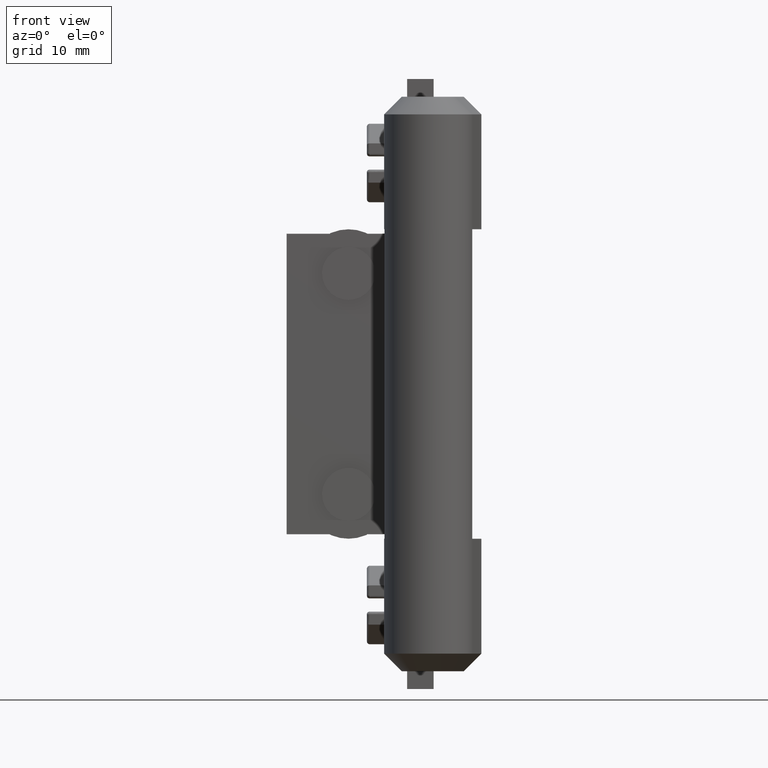
[diagram: clean part render]
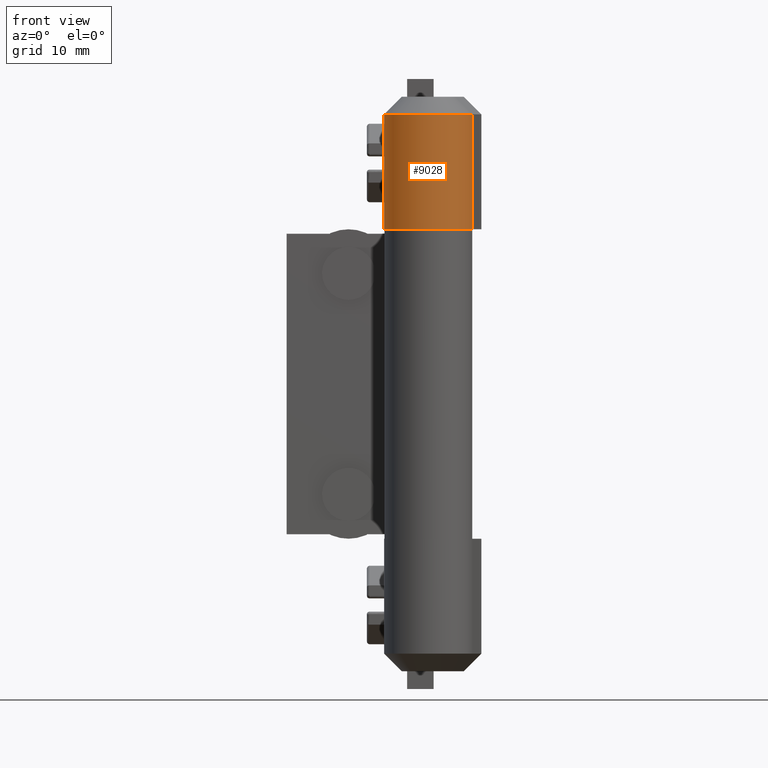
[diagram: same view with one face highlighted and labeled with its STEP entity id]
A machine part, front view. The second image highlights one B-rep face of the part: STEP entity #9028.
In plain terms, the highlighted face is a freeform B-spline surface patch.
Its self-contained STEP definition (entity closure, byte-faithful):
#8676=CARTESIAN_POINT('',(4.950484960898110,-0.701926653428345,63.000001179985603));
#8677=VERTEX_POINT('',#8676);
#8715=CARTESIAN_POINT('',(-5.000000237487280,0.0,63.000001179985603));
#8716=VERTEX_POINT('',#8715);
#8724=CARTESIAN_POINT('',(4.950484960898247,-0.701926653428362,63.000001179985603));
#8725=CARTESIAN_POINT('',(4.296329299186692,-5.315496674701240,63.000001179985595));
#8726=CARTESIAN_POINT('',(-0.351835469150294,-4.987606056769184,63.000001179985603));
#8727=CARTESIAN_POINT('',(-5.000000237487280,-4.659715438837128,63.000001179985595));
#8728=CARTESIAN_POINT('',(-5.000000237487280,0.0,63.000001179985603));
#8736=(BOUNDED_CURVE()B_SPLINE_CURVE(2,(#8724,#8725,#8726,#8727,#8728),.UNSPECIFIED.,.F.,.U.)B_SPLINE_CURVE_WITH_KNOTS((3,2,3),(0.0,0.500000000000000,1.0),.UNSPECIFIED.)CURVE()GEOMETRIC_REPRESENTATION_ITEM()RATIONAL_B_SPLINE_CURVE((1.0,0.731562400102616,1.0,0.731562400102616,1.0))REPRESENTATION_ITEM(''));
#8737=EDGE_CURVE('',#8677,#8716,#8736,.T.);
#8833=CARTESIAN_POINT('',(4.950484960898110,-0.701926653428345,50.000000467523797));
#8834=VERTEX_POINT('',#8833);
#8835=CARTESIAN_POINT('',(-5.000000237487230,-2.852708E-014,50.000000467523797));
#8836=VERTEX_POINT('',#8835);
#8837=CARTESIAN_POINT('',(4.950484960898110,-0.701926653428345,50.000000467523797));
#8838=CARTESIAN_POINT('',(4.296329299186692,-5.315496674701226,50.000000467523805));
#8839=CARTESIAN_POINT('',(-0.351835469150280,-4.987606056769185,50.000000467523797));
#8840=CARTESIAN_POINT('',(-5.000000237487279,-4.659715438837141,50.000000467523805));
#8841=CARTESIAN_POINT('',(-5.000000237487280,0.0,50.000000467523797));
#8849=(BOUNDED_CURVE()B_SPLINE_CURVE(2,(#8837,#8838,#8839,#8840,#8841),.UNSPECIFIED.,.F.,.U.)B_SPLINE_CURVE_WITH_KNOTS((3,2,3),(0.0,0.500000000000000,1.0),.UNSPECIFIED.)CURVE()GEOMETRIC_REPRESENTATION_ITEM()RATIONAL_B_SPLINE_CURVE((1.0,0.731562400102617,1.0,0.731562400102617,1.0))REPRESENTATION_ITEM(''));
#8850=EDGE_CURVE('',#8834,#8836,#8849,.T.);
#8996=CARTESIAN_POINT('',(-4.998122882096149,0.137003760312304,63.325001197797150));
#8997=CARTESIAN_POINT('',(-4.998122882096149,0.137003760312304,49.666875449266968));
#8998=CARTESIAN_POINT('',(-5.132756102391609,-4.774637916639487,63.325001197797150));
#8999=CARTESIAN_POINT('',(-5.132756102391609,-4.774637916639487,49.666875449266975));
#9000=CARTESIAN_POINT('',(-0.224212165937844,-4.994970598463848,63.325001197797150));
#9001=CARTESIAN_POINT('',(-0.224212165937844,-4.994970598463848,49.666875449266968));
#9002=CARTESIAN_POINT('',(4.684331770515919,-5.215303280288208,63.325001197797150));
#9003=CARTESIAN_POINT('',(4.684331770515919,-5.215303280288208,49.666875449266975));
#9004=CARTESIAN_POINT('',(4.990296798399887,-0.311352274365649,63.325001197797150));
#9005=CARTESIAN_POINT('',(4.990296798399887,-0.311352274365649,49.666875449266968));
#9013=(BOUNDED_SURFACE()B_SPLINE_SURFACE(1,2,((#8996,#8998,#9000,#9002,#9004),(#8997,#8999,#9001,#9003,#9005)),.UNSPECIFIED.,.F.,.F.,.U.)B_SPLINE_SURFACE_WITH_KNOTS((2,2),(3,2,3),(0.0,13.658125748530180),(0.0,8.182216417188636,16.364432834377268),.UNSPECIFIED.)GEOMETRIC_REPRESENTATION_ITEM()RATIONAL_B_SPLINE_SURFACE(((1.0,0.713250449154182,1.0,0.713250449154182,1.0),(1.0,0.713250449154182,1.0,0.713250449154182,1.0)))REPRESENTATION_ITEM('')SURFACE());
#9014=CARTESIAN_POINT('',(4.950484960898110,-0.701926653428345,63.000001179985603));
#9015=CARTESIAN_POINT('',(4.950484960898110,-0.701926653428345,50.000000467523797));
#9016=QUASI_UNIFORM_CURVE('',1,(#9014,#9015),.UNSPECIFIED.,.F.,.U.);
#9017=EDGE_CURVE('',#8677,#8834,#9016,.T.);
#9018=ORIENTED_EDGE('',*,*,#9017,.F.);
#9019=ORIENTED_EDGE('',*,*,#8737,.T.);
#9020=CARTESIAN_POINT('',(-5.000000237487280,0.0,63.000001179985603));
#9021=CARTESIAN_POINT('',(-5.000000237487230,-2.852708E-014,50.000000467523797));
#9022=QUASI_UNIFORM_CURVE('',1,(#9020,#9021),.UNSPECIFIED.,.F.,.U.);
#9023=EDGE_CURVE('',#8716,#8836,#9022,.T.);
#9024=ORIENTED_EDGE('',*,*,#9023,.T.);
#9025=ORIENTED_EDGE('',*,*,#8850,.F.);
#9026=EDGE_LOOP('',(#9018,#9019,#9024,#9025));
#9027=FACE_OUTER_BOUND('',#9026,.T.);
#9028=ADVANCED_FACE('',(#9027),#9013,.T.);